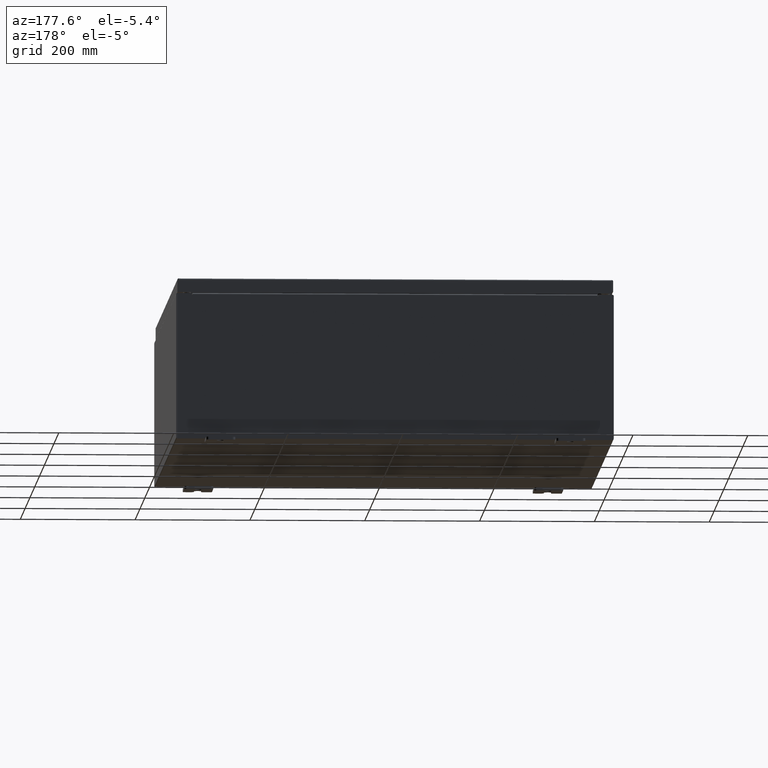
[diagram: clean part render]
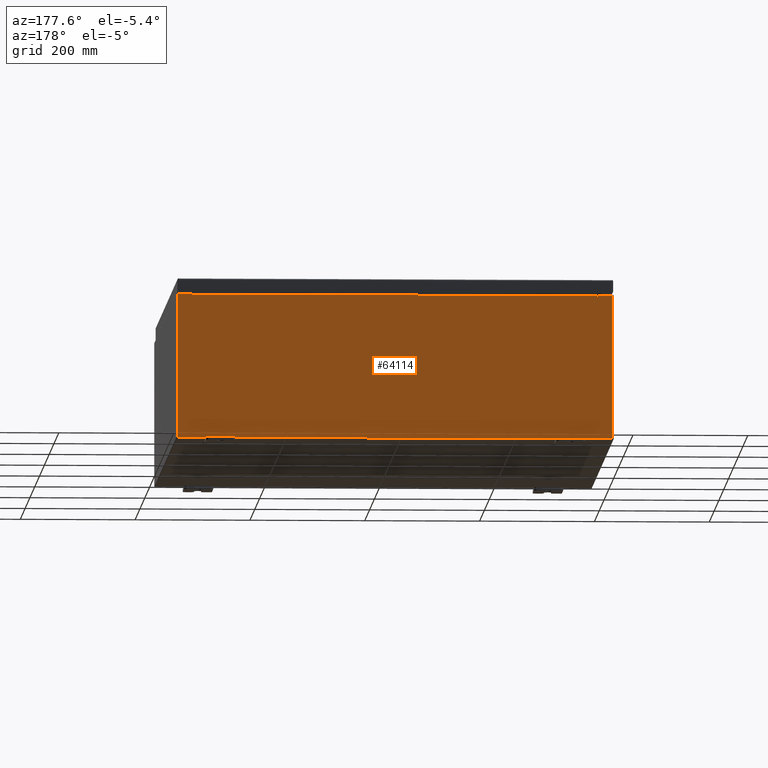
[diagram: same view with one face highlighted and labeled with its STEP entity id]
A machine part, auxiliary view. The second image highlights one B-rep face of the part: STEP entity #64114.
In plain terms, the highlighted planar face has unit normal (0, -1, 0).
Its self-contained STEP definition (entity closure, byte-faithful):
#200 = FACE_OUTER_BOUND ( 'NONE', #5874, .T. ) ;
#236 = DIRECTION ( 'NONE',  ( 1.000000000000000000, 0.0000000000000000000, 0.0000000000000000000 ) ) ;
#372 = CARTESIAN_POINT ( 'NONE',  ( -13.88720000000000500, -0.0000000000000000000, 0.0000000000000000000 ) ) ;
#724 = LINE ( 'NONE', #34218, #65064 ) ;
#798 = VECTOR ( 'NONE', #33380, 39.37007874015748100 ) ;
#1032 = LINE ( 'NONE', #25518, #40062 ) ;
#1679 = CARTESIAN_POINT ( 'NONE',  ( 13.90587500000000200, 0.0000000000000000000, 4.874950000000000100 ) ) ;
#1791 = CIRCLE ( 'NONE', #62962, 0.01867499999999949400 ) ;
#2724 = VECTOR ( 'NONE', #236, 39.37007874015748100 ) ;
#2790 = ORIENTED_EDGE ( 'NONE', *, *, #27474, .T. ) ;
#3183 = VERTEX_POINT ( 'NONE', #42133 ) ;
#3707 = ORIENTED_EDGE ( 'NONE', *, *, #50879, .F. ) ;
#5874 = EDGE_LOOP ( 'NONE', ( #16412, #35914, #3707, #8287, #21985, #15594, #31497, #35388, #29721, #47212, #57662, #2790 ) ) ;
#6834 = DIRECTION ( 'NONE',  ( 0.0000000000000000000, 0.0000000000000000000, -1.000000000000000000 ) ) ;
#7337 = AXIS2_PLACEMENT_3D ( 'NONE', #30520, #55614, #35630 ) ;
#8287 = ORIENTED_EDGE ( 'NONE', *, *, #25322, .T. ) ;
#9939 = VECTOR ( 'NONE', #65520, 39.37007874015748100 ) ;
#10241 = CARTESIAN_POINT ( 'NONE',  ( -13.88720000000000500, -7.171100983368691200E-016, 4.912300000000000100 ) ) ;
#10457 = CARTESIAN_POINT ( 'NONE',  ( -14.92530000000000200, 0.0000000000000000000, 4.925300000000000000 ) ) ;
#10624 = VERTEX_POINT ( 'NONE', #38929 ) ;
#11167 = CARTESIAN_POINT ( 'NONE',  ( -14.92530000000000200, 0.0000000000000000000, 4.925300000000000000 ) ) ;
#11568 = CARTESIAN_POINT ( 'NONE',  ( -13.92455000000000500, 0.0000000000000000000, 4.925300000000000000 ) ) ;
#11801 = DIRECTION ( 'NONE',  ( 0.0000000000000000000, 0.0000000000000000000, 1.000000000000000000 ) ) ;
#12666 = CARTESIAN_POINT ( 'NONE',  ( 13.88720000000000200, 0.0000000000000000000, 4.874950000000000100 ) ) ;
#13386 = CARTESIAN_POINT ( 'NONE',  ( 13.88720000000000200, 0.0000000000000000000, 4.912300000000000100 ) ) ;
#14319 = EDGE_CURVE ( 'NONE', #37857, #64517, #1032, .T. ) ;
#14360 = CARTESIAN_POINT ( 'NONE',  ( 13.92455000000000400, 0.0000000000000000000, 4.925300000000000000 ) ) ;
#14814 = EDGE_CURVE ( 'NONE', #3183, #41617, #1791, .T. ) ;
#15594 = ORIENTED_EDGE ( 'NONE', *, *, #14814, .F. ) ;
#16412 = ORIENTED_EDGE ( 'NONE', *, *, #32601, .F. ) ;
#17247 = VECTOR ( 'NONE', #36030, 39.37007874015748100 ) ;
#17733 = EDGE_CURVE ( 'NONE', #62782, #21372, #23960, .T. ) ;
#18048 = VERTEX_POINT ( 'NONE', #11568 ) ;
#18584 = VECTOR ( 'NONE', #37723, 39.37007874015748100 ) ;
#20130 = PLANE ( 'NONE',  #27459 ) ;
#21372 = VERTEX_POINT ( 'NONE', #59554 ) ;
#21771 = LINE ( 'NONE', #27276, #59022 ) ;
#21985 = ORIENTED_EDGE ( 'NONE', *, *, #37221, .F. ) ;
#22139 = CARTESIAN_POINT ( 'NONE',  ( -13.88720000000000500, -7.171100983368691200E-016, 4.912300000000000100 ) ) ;
#22363 = DIRECTION ( 'NONE',  ( -0.0000000000000000000, -0.0000000000000000000, 1.000000000000000000 ) ) ;
#23960 = CIRCLE ( 'NONE', #7337, 0.01867499999999949400 ) ;
#25265 = CARTESIAN_POINT ( 'NONE',  ( 0.0000000000000000000, 0.0000000000000000000, 0.0000000000000000000 ) ) ;
#25322 = EDGE_CURVE ( 'NONE', #53412, #56732, #52629, .T. ) ;
#25518 = CARTESIAN_POINT ( 'NONE',  ( -14.92530000000000200, 0.0000000000000000000, -4.925300000000000000 ) ) ;
#26673 = CARTESIAN_POINT ( 'NONE',  ( 14.92529999999999800, 0.0000000000000000000, -4.925300000000000000 ) ) ;
#27276 = CARTESIAN_POINT ( 'NONE',  ( -14.92530000000000200, 0.0000000000000000000, 4.925300000000000000 ) ) ;
#27459 = AXIS2_PLACEMENT_3D ( 'NONE', #25265, #60709, #30390 ) ;
#27474 = EDGE_CURVE ( 'NONE', #29862, #18048, #724, .T. ) ;
#29721 = ORIENTED_EDGE ( 'NONE', *, *, #40296, .T. ) ;
#29862 = VERTEX_POINT ( 'NONE', #11167 ) ;
#30390 = DIRECTION ( 'NONE',  ( 0.0000000000000000000, -0.0000000000000000000, -1.000000000000000000 ) ) ;
#30520 = CARTESIAN_POINT ( 'NONE',  ( -13.90587500000000500, 0.0000000000000000000, 4.874950000000000100 ) ) ;
#31497 = ORIENTED_EDGE ( 'NONE', *, *, #58325, .F. ) ;
#32385 = DIRECTION ( 'NONE',  ( 1.000000000000000000, 0.0000000000000000000, 0.0000000000000000000 ) ) ;
#32601 = EDGE_CURVE ( 'NONE', #21372, #18048, #59299, .T. ) ;
#32604 = CARTESIAN_POINT ( 'NONE',  ( 14.92529999999999800, 0.0000000000000000000, 4.925300000000000000 ) ) ;
#33380 = DIRECTION ( 'NONE',  ( -4.340572780400004900E-014, 0.0000000000000000000, -1.000000000000000000 ) ) ;
#33754 = LINE ( 'NONE', #32604, #18584 ) ;
#34012 = VECTOR ( 'NONE', #11801, 39.37007874015748100 ) ;
#34218 = CARTESIAN_POINT ( 'NONE',  ( -14.92530000000000200, 0.0000000000000000000, 4.925300000000000000 ) ) ;
#35388 = ORIENTED_EDGE ( 'NONE', *, *, #53429, .T. ) ;
#35630 = DIRECTION ( 'NONE',  ( 0.0000000000000000000, 0.0000000000000000000, -1.000000000000000000 ) ) ;
#35914 = ORIENTED_EDGE ( 'NONE', *, *, #17733, .F. ) ;
#36030 = DIRECTION ( 'NONE',  ( 0.0000000000000000000, 0.0000000000000000000, -1.000000000000000000 ) ) ;
#37221 = EDGE_CURVE ( 'NONE', #41617, #56732, #50585, .T. ) ;
#37359 = DIRECTION ( 'NONE',  ( -0.0000000000000000000, 1.000000000000000000, -0.0000000000000000000 ) ) ;
#37723 = DIRECTION ( 'NONE',  ( 0.0000000000000000000, 0.0000000000000000000, -1.000000000000000000 ) ) ;
#37857 = VERTEX_POINT ( 'NONE', #26673 ) ;
#38929 = CARTESIAN_POINT ( 'NONE',  ( 14.92529999999999800, 0.0000000000000000000, 4.925300000000000000 ) ) ;
#39291 = DIRECTION ( 'NONE',  ( 1.000000000000000000, 0.0000000000000000000, 0.0000000000000000000 ) ) ;
#40062 = VECTOR ( 'NONE', #60928, 39.37007874015748100 ) ;
#40280 = EDGE_CURVE ( 'NONE', #64517, #29862, #21771, .T. ) ;
#40296 = EDGE_CURVE ( 'NONE', #10624, #37857, #33754, .T. ) ;
#41617 = VERTEX_POINT ( 'NONE', #12666 ) ;
#42133 = CARTESIAN_POINT ( 'NONE',  ( 13.92455000000000000, 0.0000000000000000000, 4.874950000000000100 ) ) ;
#43379 = LINE ( 'NONE', #10457, #2724 ) ;
#44696 = CARTESIAN_POINT ( 'NONE',  ( -13.88720000000000500, -0.0000000000000000000, 4.874950000000000100 ) ) ;
#47212 = ORIENTED_EDGE ( 'NONE', *, *, #14319, .T. ) ;
#48162 = CARTESIAN_POINT ( 'NONE',  ( -14.92530000000000200, 0.0000000000000000000, -4.925300000000000000 ) ) ;
#50585 = LINE ( 'NONE', #60428, #9939 ) ;
#50879 = EDGE_CURVE ( 'NONE', #53412, #62782, #57737, .T. ) ;
#52530 = CARTESIAN_POINT ( 'NONE',  ( -13.92455000000000500, -0.0000000000000000000, 0.0000000000000000000 ) ) ;
#52629 = LINE ( 'NONE', #22139, #64442 ) ;
#53339 = LINE ( 'NONE', #64006, #798 ) ;
#53412 = VERTEX_POINT ( 'NONE', #10241 ) ;
#53429 = EDGE_CURVE ( 'NONE', #64728, #10624, #43379, .T. ) ;
#55614 = DIRECTION ( 'NONE',  ( -0.0000000000000000000, 1.000000000000000000, -0.0000000000000000000 ) ) ;
#56732 = VERTEX_POINT ( 'NONE', #13386 ) ;
#57662 = ORIENTED_EDGE ( 'NONE', *, *, #40280, .T. ) ;
#57737 = LINE ( 'NONE', #372, #17247 ) ;
#58325 = EDGE_CURVE ( 'NONE', #64728, #3183, #53339, .T. ) ;
#59022 = VECTOR ( 'NONE', #22363, 39.37007874015748100 ) ;
#59299 = LINE ( 'NONE', #52530, #34012 ) ;
#59554 = CARTESIAN_POINT ( 'NONE',  ( -13.92455000000000500, 0.0000000000000000000, 4.874950000000000100 ) ) ;
#60428 = CARTESIAN_POINT ( 'NONE',  ( 13.88720000000000200, 0.0000000000000000000, 0.0000000000000000000 ) ) ;
#60709 = DIRECTION ( 'NONE',  ( 0.0000000000000000000, -1.000000000000000000, 0.0000000000000000000 ) ) ;
#60928 = DIRECTION ( 'NONE',  ( -1.000000000000000000, -0.0000000000000000000, -0.0000000000000000000 ) ) ;
#62782 = VERTEX_POINT ( 'NONE', #44696 ) ;
#62962 = AXIS2_PLACEMENT_3D ( 'NONE', #1679, #37359, #6834 ) ;
#64006 = CARTESIAN_POINT ( 'NONE',  ( 13.92454999999978900, -0.0000000000000000000, -6.044052270931796500E-013 ) ) ;
#64114 = ADVANCED_FACE ( 'NONE', ( #200 ), #20130, .F. ) ;
#64442 = VECTOR ( 'NONE', #32385, 39.37007874015748100 ) ;
#64517 = VERTEX_POINT ( 'NONE', #48162 ) ;
#64728 = VERTEX_POINT ( 'NONE', #14360 ) ;
#65064 = VECTOR ( 'NONE', #39291, 39.37007874015748100 ) ;
#65520 = DIRECTION ( 'NONE',  ( 0.0000000000000000000, 0.0000000000000000000, 1.000000000000000000 ) ) ;